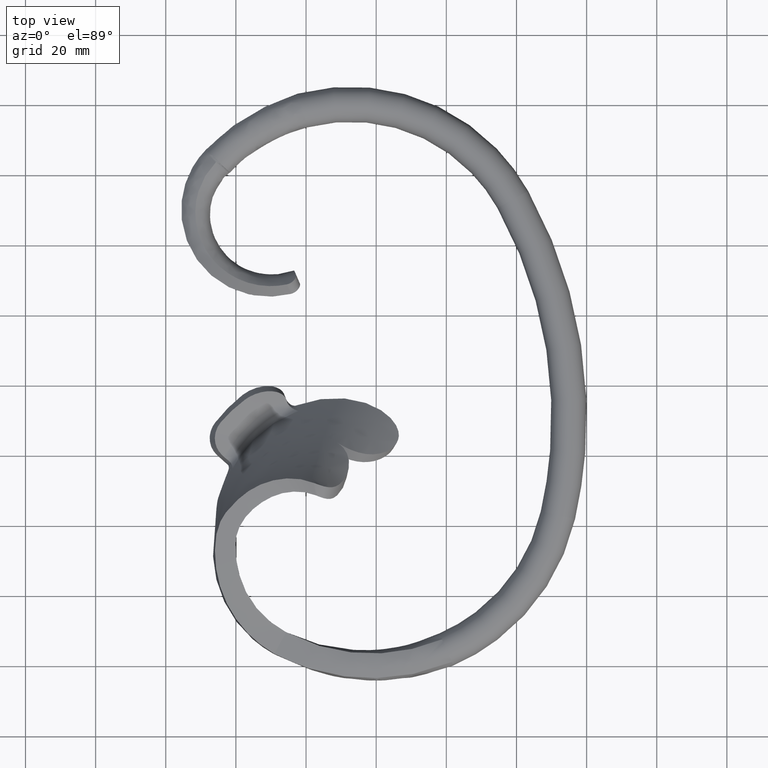
[diagram: clean part render]
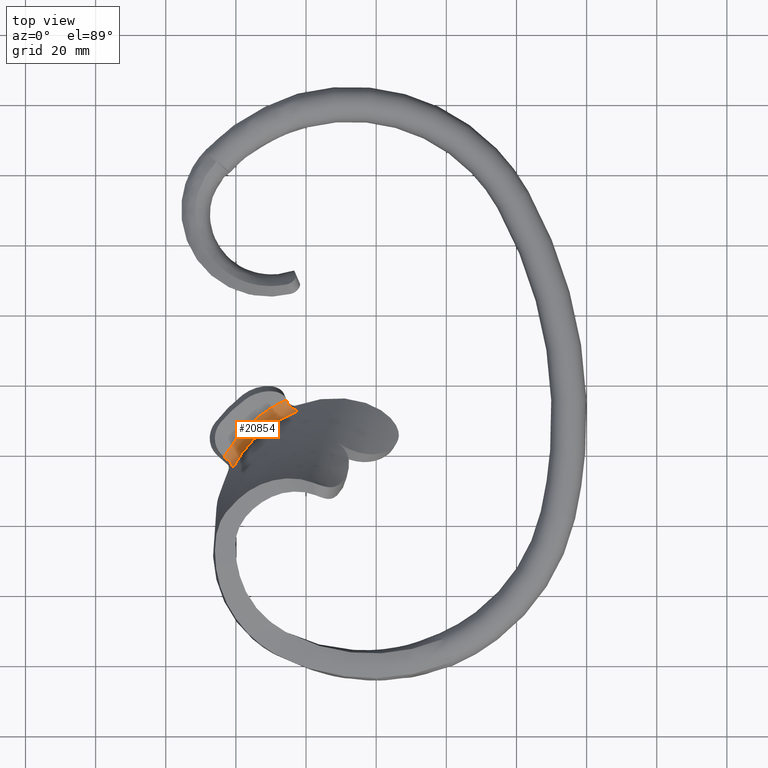
[diagram: same view with one face highlighted and labeled with its STEP entity id]
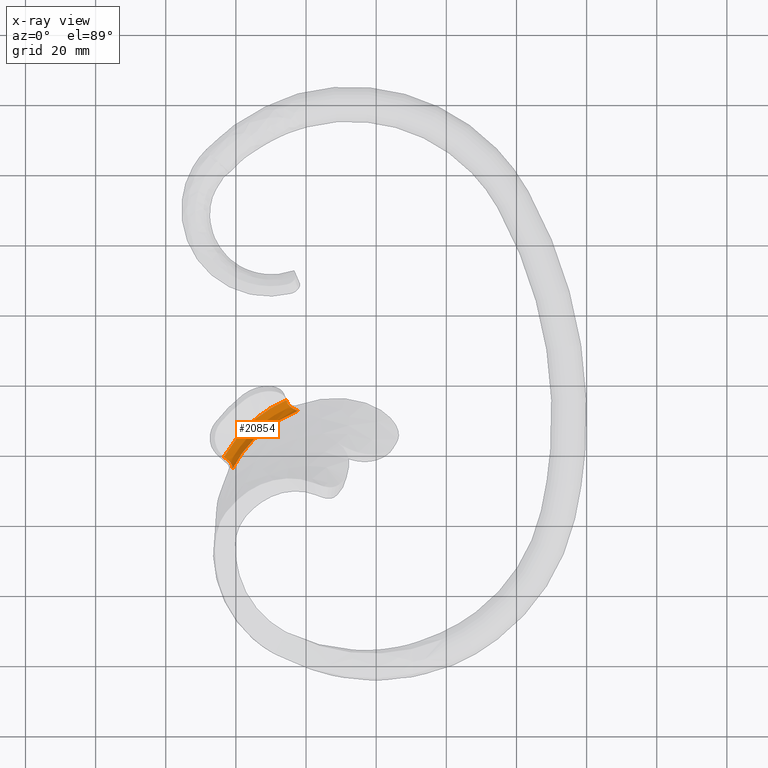
[diagram: x-ray of the same camera — body ghosted, the highlighted face saturated]
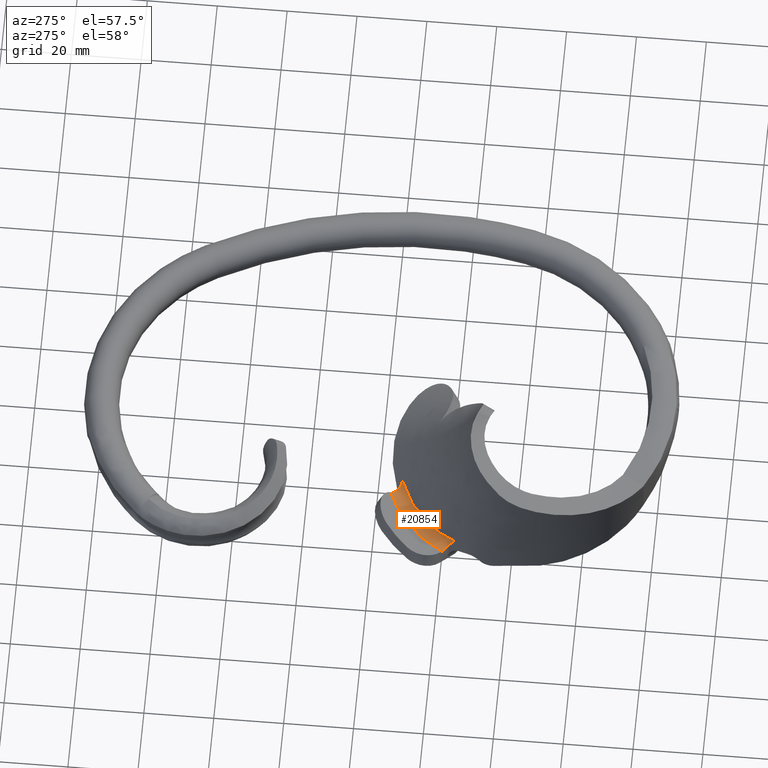
[diagram: same view with one face highlighted and labeled with its STEP entity id]
A machine part, top view. The second image highlights one B-rep face of the part: STEP entity #20854.
The next image is the same camera in x-ray: the body ghosted, the highlighted face saturated — about 0% of this face is hidden behind the body in this view.
A second angle (auxiliary view) of the same face is appended — the face is thin or edge-on in the first view.
In plain terms, the highlighted face is a freeform B-spline surface patch.
Its self-contained STEP definition (entity closure, byte-faithful):
#44 = CARTESIAN_POINT ( 'NONE',  ( -29.76850546036942546, -11.04245866875958981, -13.17953578581088081 ) ) ;
#414 = B_SPLINE_CURVE_WITH_KNOTS ( 'NONE', 3,
 ( #23416, #25579, #21502, #23590, #24035, #1334, #15839, #7750, #23758, #17833, #25836, #3582, #3314, #23946 ),
 .UNSPECIFIED., .F., .F.,
 ( 4, 2, 2, 2, 2, 2, 4 ),
 ( 1.811104479740059440E-17, 0.0004517814389672266122, 0.0009035628779344351182, 0.001807125755868843348, 0.002710688633803251361, 0.003162470072770456019, 0.003614251511737659808 ),
 .UNSPECIFIED. ) ;
#472 = CARTESIAN_POINT ( 'NONE',  ( -40.95938545482690074, -23.66976557625467237, -12.69989829459622399 ) ) ;
#666 = ORIENTED_EDGE ( 'NONE', *, *, #10993, .F. ) ;
#1334 = CARTESIAN_POINT ( 'NONE',  ( -41.40358548108321202, -22.10060004900319797, -14.43897433938566266 ) ) ;
#1424 = CARTESIAN_POINT ( 'NONE',  ( -24.82343604445838281, -3.814388491378711166, -13.42365604626865760 ) ) ;
#1512 = CARTESIAN_POINT ( 'NONE',  ( -23.08433491217182620, -7.556268275641481402, -12.52244880115946835 ) ) ;
#1523 = CARTESIAN_POINT ( 'NONE',  ( -36.57816587474498959, -11.41665345036053836, -14.84372597568098406 ) ) ;
#1692 = CARTESIAN_POINT ( 'NONE',  ( -24.08788445665152267, -7.955938398561930747, -12.64135043411182835 ) ) ;
#1778 = CARTESIAN_POINT ( 'NONE',  ( -32.36629779738443347, -12.97717960331475240, -13.32188062161590913 ) ) ;
#1851 = CARTESIAN_POINT ( 'NONE',  ( -41.16859937603722841, -22.23027845627958143, -15.74697032563350163 ) ) ;
#1932 = CARTESIAN_POINT ( 'NONE',  ( -40.43297420820871224, -22.70985904824243207, -12.81900093171249821 ) ) ;
#1971 = EDGE_CURVE ( 'NONE', #2547, #9428, #4334, .T. ) ;
#2002 = FACE_OUTER_BOUND ( 'NONE', #12253, .T. ) ;
#2025 = CARTESIAN_POINT ( 'NONE',  ( -43.27009315666528977, -20.04080515305191312, -14.88245685376667637 ) ) ;
#2110 = CARTESIAN_POINT ( 'NONE',  ( -33.58315164135750308, -14.05227138686590038, -13.35038135666667003 ) ) ;
#2202 = CARTESIAN_POINT ( 'NONE',  ( -44.36115075249910689, -22.13245049612387660, -14.75766952526318221 ) ) ;
#2441 = CARTESIAN_POINT ( 'NONE',  ( -39.91693056719198296, -21.81358601959886911, -12.93192292353537631 ) ) ;
#2547 = VERTEX_POINT ( 'NONE', #10635 ) ;
#2741 = CARTESIAN_POINT ( 'NONE',  ( -43.40567961550441822, -20.29162093778961307, -14.86631043169677646 ) ) ;
#3314 = CARTESIAN_POINT ( 'NONE',  ( -40.95137574672741465, -23.58556148152964838, -12.82449381640276798 ) ) ;
#3395 = CARTESIAN_POINT ( 'NONE',  ( -23.61806882005847896, -6.009913057351933041, -14.99068133870945552 ) ) ;
#3406 = CARTESIAN_POINT ( 'NONE',  ( -29.23579235363984807, -5.872358788473834856, -14.07531743228589427 ) ) ;
#3479 = CARTESIAN_POINT ( 'NONE',  ( -24.42579873187920825, -3.651969556383702464, -13.36034110727558577 ) ) ;
#3573 = CARTESIAN_POINT ( 'NONE',  ( -23.27309209511182786, -7.630310300353325026, -12.54410795981713633 ) ) ;
#3582 = CARTESIAN_POINT ( 'NONE',  ( -40.94959276036374263, -23.49619023734425483, -12.94932951577066760 ) ) ;
#3667 = CARTESIAN_POINT ( 'NONE',  ( -24.88734974321244664, -3.841177015830578689, -13.43432728033384826 ) ) ;
#3743 = CARTESIAN_POINT ( 'NONE',  ( -23.74229874335965818, -6.062894649191756358, -15.00650151906111418 ) ) ;
#3824 = CARTESIAN_POINT ( 'NONE',  ( -37.76687341098469375, -16.84620413155892393, -16.10149250594393067 ) ) ;
#3918 = CARTESIAN_POINT ( 'NONE',  ( -43.68921266836929362, -20.80937959299932771, -14.83424887422059868 ) ) ;
#4007 = CARTESIAN_POINT ( 'NONE',  ( -40.51563935332089983, -22.85691190776732284, -12.80005610126362114 ) ) ;
#4088 = CARTESIAN_POINT ( 'NONE',  ( -41.21784607917445697, -22.32561736692827026, -15.73694882067989376 ) ) ;
#4170 = CARTESIAN_POINT ( 'NONE',  ( -38.84180857146350974, -20.10553825081292345, -13.11453821720941804 ) ) ;
#4269 = CARTESIAN_POINT ( 'NONE',  ( -41.41658188344730718, -22.72020241177144939, -15.69190476141811885 ) ) ;
#4330 = CARTESIAN_POINT ( 'NONE',  ( -36.87764513332638217, -17.48846780313327542, -13.29766782119081014 ) ) ;
#4334 = B_SPLINE_CURVE_WITH_KNOTS ( 'NONE', 3,
 ( #9645, #24131, #23760, #9376, #9734, #19979, #15746, #23851, #5485, #20068, #13855, #26205, #5578, #17646, #1523, #19712, #7579, #21948, #3406, #17836, #25839 ),
 .UNSPECIFIED., .F., .F.,
 ( 4, 2, 1, 2, 2, 2, 2, 2, 2, 2, 4 ),
 ( -5.999999932499358915E-08, 0.0003816672337653026644, 0.0007633944675299303819, 0.001526848935059185166, 0.003053757870117694735, 0.006107575740234714307, 0.009161393610351733011, 0.01068830254541024323, 0.01221521148046875345, 0.01832284722070275443, 0.02443048296093675020 ),
 .UNSPECIFIED. ) ;
#4456 =( BOUNDED_SURFACE ( )  B_SPLINE_SURFACE ( 3, 2, ( 
 ( #24204, #16089, #11863 ),
 ( #26286, #22201, #14012 ),
 ( #22033, #19882, #7565 ),
 ( #13753, #9981, #11692 ),
 ( #1512, #9900, #3479 ),
 ( #3573, #26099, #11783 ),
 ( #13930, #3395, #16006 ),
 ( #24294, #3743, #1424 ),
 ( #13842, #15829, #3667 ),
 ( #1692, #17823, #18178 ),
 ( #18085, #20224, #24373 ),
 ( #17919, #5565, #7920 ),
 ( #22290, #7654, #18002 ),
 ( #24117, #26192, #7828 ),
 ( #15924, #5736, #20146 ),
 ( #44, #7995, #14355 ),
 ( #12116, #6177, #16438 ),
 ( #20572, #6085, #26441 ),
 ( #1778, #24810, #10157 ),
 ( #2110, #16172, #22380 ),
 ( #22646, #8260, #14439 ),
 ( #12383, #26701, #18604 ),
 ( #10325, #24726, #10066 ),
 ( #24455, #16530, #18517 ),
 ( #18262, #3824, #6269 ),
 ( #5914, #24546, #5999 ),
 ( #4170, #22548, #26530 ),
 ( #20664, #18424, #10416 ),
 ( #8343, #22736, #2025 ),
 ( #20308, #14175, #12203 ),
 ( #14092, #1851, #20487 ),
 ( #16258, #4088, #3918 ),
 ( #18337, #20401, #26620 ),
 ( #8082, #22462, #14267 ),
 ( #1932, #16345, #8173 ),
 ( #4007, #10238, #12292 ),
 ( #24641, #4269, #8799 ),
 ( #24905, #18787, #21025 ),
 ( #8437, #6726, #14797 ),
 ( #16893, #12827, #2202 ) ),
 .UNSPECIFIED., .F., .F., .F. ) 
 B_SPLINE_SURFACE_WITH_KNOTS ( ( 4, 2, 2, 2, 2, 2, 2, 2, 2, 2, 2, 2, 2, 2, 2, 2, 2, 2, 2, 4 ),
 ( 3, 3 ),
 ( 0.05206743305316917370, 0.05291993615942454376, 0.05334618771255222880, 0.05355931348911607132, 0.05377243926567991383, 0.05547744547819065397, 0.05888745790321212731, 0.06059246411572286051, 0.06229747032823360064, 0.06570748275325508092, 0.06741248896576582106, 0.06911749517827656120, 0.07252750760329804147, 0.07593752002831952175, 0.07764252624083026189, 0.07785565201739411134, 0.07796221490567603607, 0.07806877779395794692, 0.07849502934708563195, 0.07934753245334098815 ),
 ( 0.000000000000000000, 1.000000000000000000 ),
 .UNSPECIFIED. ) 
 GEOMETRIC_REPRESENTATION_ITEM ( )  RATIONAL_B_SPLINE_SURFACE ( (
 ( 1.000000000000000000, 0.7111441431668186208, 1.000000000000000000),
 ( 1.000000000000000000, 0.7113756139119327138, 1.000000000000000000),
 ( 1.000000000000000000, 0.7116120831596388641, 1.000000000000000000),
 ( 1.000000000000000000, 0.7119749825811807487, 1.000000000000000000),
 ( 1.000000000000000000, 0.7120973143900162228, 1.000000000000000000),
 ( 1.000000000000000000, 0.7122829380535076194, 1.000000000000000000),
 ( 1.000000000000000000, 0.7123451524535797663, 1.000000000000000000),
 ( 1.000000000000000000, 0.7124702161662124222, 1.000000000000000000),
 ( 1.000000000000000000, 0.7125777696179602660, 1.000000000000000000),
 ( 1.000000000000000000, 0.7123528080028022069, 1.000000000000000000),
 ( 1.000000000000000000, 0.7121497526254354504, 1.000000000000000000),
 ( 1.000000000000000000, 0.7115171381817239071, 1.000000000000000000),
 ( 1.000000000000000000, 0.7110706932374695199, 1.000000000000000000),
 ( 1.000000000000000000, 0.7104004420955978283, 1.000000000000000000),
 ( 1.000000000000000000, 0.7101779582108158628, 1.000000000000000000),
 ( 1.000000000000000000, 0.7097339848433383835, 1.000000000000000000),
 ( 1.000000000000000000, 0.7095117973524093236, 1.000000000000000000),
 ( 1.000000000000000000, 0.7088362058545641942, 1.000000000000000000),
 ( 1.000000000000000000, 0.7083713594687531812, 1.000000000000000000),
 ( 1.000000000000000000, 0.7076972824088877401, 1.000000000000000000),
 ( 1.000000000000000000, 0.7074742883701689022, 1.000000000000000000),
 ( 1.000000000000000000, 0.7070323788107603091, 1.000000000000000000),
 ( 1.000000000000000000, 0.7068125324326063330, 1.000000000000000000),
 ( 1.000000000000000000, 0.7061612449067178332, 1.000000000000000000),
 ( 1.000000000000000000, 0.7057454735467924012, 1.000000000000000000),
 ( 1.000000000000000000, 0.7048078632699387169, 1.000000000000000000),
 ( 1.000000000000000000, 0.7042558685988494771, 1.000000000000000000),
 ( 1.000000000000000000, 0.7034327703482669003, 1.000000000000000000),
 ( 1.000000000000000000, 0.7031603139451971796, 1.000000000000000000),
 ( 1.000000000000000000, 0.7028736918683309298, 1.000000000000000000),
 ( 1.000000000000000000, 0.7028423433545183396, 1.000000000000000000),
 ( 1.000000000000000000, 0.7027960539136044460, 1.000000000000000000),
 ( 1.000000000000000000, 0.7027650307663644291, 1.000000000000000000),
 ( 1.000000000000000000, 0.7028009313548870818, 1.000000000000000000),
 ( 1.000000000000000000, 0.7028187961193999023, 1.000000000000000000),
 ( 1.000000000000000000, 0.7029077020594017844, 1.000000000000000000),
 ( 1.000000000000000000, 0.7029775140581013826, 1.000000000000000000),
 ( 1.000000000000000000, 0.7031830396122209503, 1.000000000000000000),
 ( 1.000000000000000000, 0.7033148975316761975, 1.000000000000000000),
 ( 1.000000000000000000, 0.7034426798579952456, 1.000000000000000000) ) ) 
 REPRESENTATION_ITEM ( '' )  SURFACE ( )  );
#5332 = ORIENTED_EDGE ( 'NONE', *, *, #19008, .T. ) ;
#5485 = CARTESIAN_POINT ( 'NONE',  ( -41.24037282601419463, -16.81919244271806946, -14.99521965594871276 ) ) ;
#5524 = CARTESIAN_POINT ( 'NONE',  ( -25.51186546637336505, -4.257865747691061742, -13.62384176158913363 ) ) ;
#5565 = CARTESIAN_POINT ( 'NONE',  ( -26.46455215359696211, -7.322789046810009417, -15.36851345556520876 ) ) ;
#5578 = CARTESIAN_POINT ( 'NONE',  ( -37.66687085691253145, -12.50509954697501414, -14.91196671822767428 ) ) ;
#5736 = CARTESIAN_POINT ( 'NONE',  ( -29.41581303803803138, -9.088767870530578108, -15.69918298086466990 ) ) ;
#5883 = CARTESIAN_POINT ( 'NONE',  ( -22.71653399191366773, -7.412084421164813364, -12.48021362348812424 ) ) ;
#5914 = CARTESIAN_POINT ( 'NONE',  ( -38.23085213201760979, -19.23316719809762176, -13.18740217243378687 ) ) ;
#5999 = CARTESIAN_POINT ( 'NONE',  ( -41.34700407776836073, -16.96097714558526448, -14.99483813151429068 ) ) ;
#6085 = CARTESIAN_POINT ( 'NONE',  ( -32.19350991524994754, -11.11917037821060283, -15.94534706785984035 ) ) ;
#6177 = CARTESIAN_POINT ( 'NONE',  ( -30.82678208483131144, -10.07601481428552148, -15.83232672212407977 ) ) ;
#6269 = CARTESIAN_POINT ( 'NONE',  ( -39.90125792740165878, -15.02863392163688872, -14.99779185083860256 ) ) ;
#6444 = CARTESIAN_POINT ( 'NONE',  ( -25.47428158193053349, -4.414322068836333379, -13.71380617622522635 ) ) ;
#6608 = CARTESIAN_POINT ( 'NONE',  ( -27.07886094767422946, -9.384533134470837368, -12.96131239880683417 ) ) ;
#6726 = CARTESIAN_POINT ( 'NONE',  ( -41.71367547415369614, -23.32712598098325429, -15.62460963376939027 ) ) ;
#6944 = CARTESIAN_POINT ( 'NONE',  ( -22.21767933813427476, -7.226777998182064344, -12.43076396185534094 ) ) ;
#7028 = ORIENTED_EDGE ( 'NONE', *, *, #18556, .F. ) ;
#7429 = CARTESIAN_POINT ( 'NONE',  ( -25.49498385120665844, -4.328645343937805201, -13.66654149843208721 ) ) ;
#7449 = VERTEX_POINT ( 'NONE', #7967 ) ;
#7565 = CARTESIAN_POINT ( 'NONE',  ( -23.89453797925189349, -3.439870426523729208, -13.27899522671646260 ) ) ;
#7579 = CARTESIAN_POINT ( 'NONE',  ( -34.30386044499079645, -9.336887364029710312, -14.66619888048259845 ) ) ;
#7654 = CARTESIAN_POINT ( 'NONE',  ( -27.46812804008518327, -7.872720435578895781, -15.48955902839464294 ) ) ;
#7750 = CARTESIAN_POINT ( 'NONE',  ( -41.08757178867347193, -22.72923539672733639, -13.86608099521722259 ) ) ;
#7828 = CARTESIAN_POINT ( 'NONE',  ( -30.37174419845431217, -6.605278579449850085, -14.21425807086474080 ) ) ;
#7920 = CARTESIAN_POINT ( 'NONE',  ( -27.72853424589683158, -5.106309575483383156, -13.86086911131313393 ) ) ;
#7967 = CARTESIAN_POINT ( 'NONE',  ( -40.95938545482690074, -23.66976557625467237, -12.69989829459622399 ) ) ;
#7995 = CARTESIAN_POINT ( 'NONE',  ( -30.36248985333687145, -9.739438628822755462, -15.79060995265018441 ) ) ;
#8082 = CARTESIAN_POINT ( 'NONE',  ( -40.41641382008071304, -22.68047066756599506, -12.82280148255661523 ) ) ;
#8173 = CARTESIAN_POINT ( 'NONE',  ( -43.75800132394807918, -20.93958935644841901, -14.82598789112440052 ) ) ;
#8260 = CARTESIAN_POINT ( 'NONE',  ( -34.74093007557150514, -13.43617998773190791, -16.08240049367316971 ) ) ;
#8343 = CARTESIAN_POINT ( 'NONE',  ( -39.98087165592379222, -21.92051102774618343, -12.91934199781865011 ) ) ;
#8437 = CARTESIAN_POINT ( 'NONE',  ( -40.90522705316630692, -23.56702702734279242, -12.71194081366711792 ) ) ;
#8530 = CARTESIAN_POINT ( 'NONE',  ( -25.45279729147317127, -4.501790891478699486, -13.75661388925756867 ) ) ;
#8589 = CARTESIAN_POINT ( 'NONE',  ( -28.91595837574801919, -10.46793238071282062, -13.11999821339689554 ) ) ;
#8673 = CARTESIAN_POINT ( 'NONE',  ( -35.09916247392494881, -15.52335363356865550, -13.35412607684676622 ) ) ;
#8799 = CARTESIAN_POINT ( 'NONE',  ( -43.90767087263415647, -21.22814950363075326, -14.80846718489264191 ) ) ;
#8975 = CARTESIAN_POINT ( 'NONE',  ( -22.93969375558230794, -6.969415529967141865, -13.06223405117900427 ) ) ;
#9054 = CARTESIAN_POINT ( 'NONE',  ( -24.73152659079823934, -5.755007668289891853, -13.98137755125410031 ) ) ;
#9325 = CARTESIAN_POINT ( 'NONE',  ( -25.31061038854252487, -4.947078206488805918, -13.92786464670841262 ) ) ;
#9376 = CARTESIAN_POINT ( 'NONE',  ( -43.15266408574198920, -19.84392920881771616, -14.89126008877860485 ) ) ;
#9428 = VERTEX_POINT ( 'NONE', #10934 ) ;
#9645 = CARTESIAN_POINT ( 'NONE',  ( -43.40567961550441822, -20.29162093778961307, -14.86631043169677646 ) ) ;
#9734 = CARTESIAN_POINT ( 'NONE',  ( -42.96027348237632282, -19.51019526541551485, -14.90857695917042314 ) ) ;
#9900 = CARTESIAN_POINT ( 'NONE',  ( -23.36916622111356645, -5.904658766234680556, -14.95959093952940577 ) ) ;
#9981 = CARTESIAN_POINT ( 'NONE',  ( -23.24457892588768360, -5.852546832308125779, -14.94441896123873903 ) ) ;
#10066 = CARTESIAN_POINT ( 'NONE',  ( -37.90467916628390554, -12.75302243086549403, -14.92499698831363197 ) ) ;
#10157 = CARTESIAN_POINT ( 'NONE',  ( -34.81418842227986943, -9.806830400958515881, -14.70545925644426610 ) ) ;
#10238 = CARTESIAN_POINT ( 'NONE',  ( -41.35627014958572545, -22.59922462220605155, -15.70568543253289562 ) ) ;
#10325 = CARTESIAN_POINT ( 'NONE',  ( -35.13453266016455956, -15.55977529316350427, -13.35368956776895466 ) ) ;
#10416 = CARTESIAN_POINT ( 'NONE',  ( -42.96675636797601783, -19.51483631531017693, -14.90953816947611088 ) ) ;
#10561 = CARTESIAN_POINT ( 'NONE',  ( -36.18985093837971334, -16.68436696254575224, -13.33088930793454985 ) ) ;
#10635 = CARTESIAN_POINT ( 'NONE',  ( -43.40567961550441822, -20.29162093778961307, -14.86631043169677646 ) ) ;
#10753 = CARTESIAN_POINT ( 'NONE',  ( -39.64068788816763345, -21.36004113807311811, -12.98343592339687902 ) ) ;
#10934 = CARTESIAN_POINT ( 'NONE',  ( -25.55396946023624594, -4.116957629322386403, -13.53715307569771653 ) ) ;
#10965 = B_SPLINE_CURVE_WITH_KNOTS ( 'NONE', 3,
 ( #25174, #6444, #8530, #14983 ),
 .UNSPECIFIED., .F., .F.,
 ( 4, 4 ),
 ( 0.0002546814975663375612, 0.0005536646435619274262 ),
 .UNSPECIFIED. ) ;
#10993 = EDGE_CURVE ( 'NONE', #20573, #12563, #10965, .T. ) ;
#11282 = EDGE_CURVE ( 'NONE', #15493, #12563, #25457, .T. ) ;
#11692 = CARTESIAN_POINT ( 'NONE',  ( -24.29305932373507204, -3.598559319623893415, -13.33973544938138822 ) ) ;
#11783 = CARTESIAN_POINT ( 'NONE',  ( -24.62475118344531921, -3.732875819033695031, -13.39178615183572063 ) ) ;
#11863 = CARTESIAN_POINT ( 'NONE',  ( -23.36199049639708036, -3.234347881235916322, -13.20232494959036273 ) ) ;
#12116 = CARTESIAN_POINT ( 'NONE',  ( -30.21319779287230745, -11.34938217209023925, -13.20904804706611024 ) ) ;
#12203 = CARTESIAN_POINT ( 'NONE',  ( -43.59868453920368125, -20.64193949463540534, -14.84502506813515765 ) ) ;
#12253 = EDGE_LOOP ( 'NONE', ( #15532, #5332, #7028, #26138, #666, #25510, #17154 ) ) ;
#12292 = CARTESIAN_POINT ( 'NONE',  ( -43.84139430214463573, -21.09964697280001644, -14.81616209931972605 ) ) ;
#12383 = CARTESIAN_POINT ( 'NONE',  ( -34.75725749186969438, -15.17531025737925177, -13.35729981391095400 ) ) ;
#12563 = VERTEX_POINT ( 'NONE', #19163 ) ;
#12797 = CARTESIAN_POINT ( 'NONE',  ( -24.20010518494717999, -8.003542309823149736, -12.65437433836695647 ) ) ;
#12827 = CARTESIAN_POINT ( 'NONE',  ( -41.82940146159226202, -23.57150842706293403, -15.59871853463510227 ) ) ;
#13169 = CARTESIAN_POINT ( 'NONE',  ( -24.30049052552361033, -6.147302894628555059, -13.85997370733969625 ) ) ;
#13353 = CARTESIAN_POINT ( 'NONE',  ( -22.79171767236065449, -7.031747621433678930, -12.94502654882185233 ) ) ;
#13629 = CARTESIAN_POINT ( 'NONE',  ( -25.55396946023624594, -4.116957629322386403, -13.53715307569771653 ) ) ;
#13753 = CARTESIAN_POINT ( 'NONE',  ( -22.95833899519920607, -7.507363900002156143, -12.50836646087982729 ) ) ;
#13842 = CARTESIAN_POINT ( 'NONE',  ( -23.52423586983173820, -7.729843091888337625, -12.57370718086497163 ) ) ;
#13855 = CARTESIAN_POINT ( 'NONE',  ( -39.37848145866241367, -14.39863777580156956, -14.98524765189787544 ) ) ;
#13930 = CARTESIAN_POINT ( 'NONE',  ( -23.33595693625407819, -7.655099466930759711, -12.55141528653479988 ) ) ;
#14012 = CARTESIAN_POINT ( 'NONE',  ( -23.62845297883172080, -3.336133392277563559, -13.23993742094664761 ) ) ;
#14092 = CARTESIAN_POINT ( 'NONE',  ( -40.31665483673368300, -22.50446695119564566, -12.84556973923223389 ) ) ;
#14175 = CARTESIAN_POINT ( 'NONE',  ( -41.13559705517954512, -22.16682618865693399, -15.75354818314894345 ) ) ;
#14267 = CARTESIAN_POINT ( 'NONE',  ( -43.74129387072357389, -20.90760339652219812, -14.82796357514288133 ) ) ;
#14355 = CARTESIAN_POINT ( 'NONE',  ( -31.90466850460602899, -7.604704600842277173, -14.40023409971017010 ) ) ;
#14439 = CARTESIAN_POINT ( 'NONE',  ( -36.61874870286719386, -11.45364863281999135, -14.84692421723199907 ) ) ;
#14535 = B_SPLINE_CURVE_WITH_KNOTS ( 'NONE', 3,
 ( #25529, #19224, #15325, #23540, #15064, #2741 ),
 .UNSPECIFIED., .F., .F.,
 ( 4, 2, 4 ),
 ( 0.003145753455179702788, 0.003950073323211965130, 0.004754393191244227906 ),
 .UNSPECIFIED. ) ;
#14680 = CARTESIAN_POINT ( 'NONE',  ( -38.78377210362832272, -20.02077768951767567, -13.12205394043971474 ) ) ;
#14766 = CARTESIAN_POINT ( 'NONE',  ( -33.56518265287648006, -14.03604570380676542, -13.35004292562973660 ) ) ;
#14797 = CARTESIAN_POINT ( 'NONE',  ( -44.23409062407620951, -21.87288906754015372, -14.77149358738712870 ) ) ;
#14860 = CARTESIAN_POINT ( 'NONE',  ( -31.53290320005250180, -12.30890119743842881, -13.28631824900139158 ) ) ;
#14983 = CARTESIAN_POINT ( 'NONE',  ( -25.43053703061923088, -4.591044012400402607, -13.79498551023266018 ) ) ;
#15064 = CARTESIAN_POINT ( 'NONE',  ( -43.21642590687873309, -20.47057306628087758, -14.94422261546310438 ) ) ;
#15325 = CARTESIAN_POINT ( 'NONE',  ( -42.59778738644331497, -20.99236544868240628, -15.00574304462421082 ) ) ;
#15416 = CARTESIAN_POINT ( 'NONE',  ( -23.39133542934760257, -6.756386637592350475, -13.39303251568627218 ) ) ;
#15493 = VERTEX_POINT ( 'NONE', #6944 ) ;
#15532 = ORIENTED_EDGE ( 'NONE', *, *, #17693, .F. ) ;
#15746 = CARTESIAN_POINT ( 'NONE',  ( -42.36350192764925993, -18.52413597517336896, -14.95051730554244251 ) ) ;
#15829 = CARTESIAN_POINT ( 'NONE',  ( -23.80226526122027053, -6.088880616378074428, -15.01391751422854171 ) ) ;
#15839 = CARTESIAN_POINT ( 'NONE',  ( -41.27872586312427217, -22.31066570096581358, -14.26329766286241707 ) ) ;
#15924 = CARTESIAN_POINT ( 'NONE',  ( -28.86319319425682295, -10.44969446572445015, -13.11296566754117165 ) ) ;
#16006 = CARTESIAN_POINT ( 'NONE',  ( -24.69102699335235229, -3.759970108746997219, -13.40235482727769956 ) ) ;
#16089 = CARTESIAN_POINT ( 'NONE',  ( -22.37024266521255100, -5.496135895364837154, -14.84456410041211427 ) ) ;
#16172 = CARTESIAN_POINT ( 'NONE',  ( -34.32898117479059863, -13.03287085945537171, -16.06624954417828732 ) ) ;
#16258 = CARTESIAN_POINT ( 'NONE',  ( -40.36662042085950475, -22.59239683059811910, -12.83423638681525958 ) ) ;
#16345 = CARTESIAN_POINT ( 'NONE',  ( -41.28039726424191258, -22.44854654347050626, -15.72311923857316351 ) ) ;
#16438 = CARTESIAN_POINT ( 'NONE',  ( -32.40317446859355499, -7.953902136733765893, -14.45704130450103975 ) ) ;
#16530 = CARTESIAN_POINT ( 'NONE',  ( -37.05963303522639052, -15.96007382876227965, -16.11729382669216903 ) ) ;
#16590 = CARTESIAN_POINT ( 'NONE',  ( -24.68896233804007068, -8.216193103286686394, -12.71023444056963925 ) ) ;
#16678 = CARTESIAN_POINT ( 'NONE',  ( -32.36386407372781804, -12.97574657539581011, -13.32165474002195538 ) ) ;
#16763 = CARTESIAN_POINT ( 'NONE',  ( -40.70859966217373227, -23.20002958833733331, -12.75593539781036512 ) ) ;
#16893 = CARTESIAN_POINT ( 'NONE',  ( -41.03145472007969374, -23.80527114887601314, -12.68381860078292966 ) ) ;
#17154 = ORIENTED_EDGE ( 'NONE', *, *, #1971, .F. ) ;
#17418 = CARTESIAN_POINT ( 'NONE',  ( -22.35709701595788346, -7.187841086308760730, -12.56669433595608076 ) ) ;
#17601 = CARTESIAN_POINT ( 'NONE',  ( -25.53147266484211286, -4.187250765650879281, -13.58069775242169541 ) ) ;
#17646 = CARTESIAN_POINT ( 'NONE',  ( -37.30957926844421735, -12.13795198209104953, -14.89139013702862258 ) ) ;
#17693 = EDGE_CURVE ( 'NONE', #23951, #2547, #14535, .T. ) ;
#17823 = CARTESIAN_POINT ( 'NONE',  ( -24.39751213997325507, -6.339873074510080642, -15.09690825745945553 ) ) ;
#17833 = CARTESIAN_POINT ( 'NONE',  ( -40.97064858632683126, -23.21940113990366328, -13.30847429567289097 ) ) ;
#17836 = CARTESIAN_POINT ( 'NONE',  ( -27.43256992930465898, -4.916317482186464360, -13.82406452950157494 ) ) ;
#17840 = EDGE_CURVE ( 'NONE', #9428, #20573, #18698, .T. ) ;
#17919 = CARTESIAN_POINT ( 'NONE',  ( -26.04980626590713655, -8.844704166619910879, -12.85953934995340120 ) ) ;
#18002 = CARTESIAN_POINT ( 'NONE',  ( -28.80194619551310353, -5.672875854681198149, -14.01044324340325709 ) ) ;
#18085 = CARTESIAN_POINT ( 'NONE',  ( -24.58279400660726921, -8.169086195142911677, -12.69825448533846846 ) ) ;
#18178 = CARTESIAN_POINT ( 'NONE',  ( -25.52172275508282695, -4.097640933952140685, -13.53298712356435907 ) ) ;
#18233 = CARTESIAN_POINT ( 'NONE',  ( -22.21767933813427476, -7.226777998182064344, -12.43076396185534094 ) ) ;
#18262 = CARTESIAN_POINT ( 'NONE',  ( -36.92796734772200296, -17.54891125248920147, -13.29479189216014134 ) ) ;
#18337 = CARTESIAN_POINT ( 'NONE',  ( -40.38323844399389628, -22.62173813491444108, -12.83042609003529044 ) ) ;
#18424 = CARTESIAN_POINT ( 'NONE',  ( -40.56142827222704739, -21.09823561826116034, -15.85697939186259475 ) ) ;
#18517 = CARTESIAN_POINT ( 'NONE',  ( -39.13104386498620357, -14.09710340750755364, -14.97984851402534900 ) ) ;
#18556 = EDGE_CURVE ( 'NONE', #15493, #7449, #22827, .T. ) ;
#18604 = CARTESIAN_POINT ( 'NONE',  ( -37.48400833138628485, -12.31385203533856476, -14.90204700292133033 ) ) ;
#18698 = B_SPLINE_CURVE_WITH_KNOTS ( 'NONE', 3,
 ( #13629, #17601, #5524, #7429 ),
 .UNSPECIFIED., .F., .F.,
 ( 4, 4 ),
 ( 0.000000000000000000, 1.000000000000000000 ),
 .UNSPECIFIED. ) ;
#18732 = CARTESIAN_POINT ( 'NONE',  ( -25.49498385120665844, -4.328645343937805201, -13.66654149843208721 ) ) ;
#18754 = CARTESIAN_POINT ( 'NONE',  ( -34.72574294946321061, -15.14389046799913707, -13.35742914012929461 ) ) ;
#18787 = CARTESIAN_POINT ( 'NONE',  ( -41.59600106460400326, -23.08376053076483814, -15.65110533387713687 ) ) ;
#19008 = EDGE_CURVE ( 'NONE', #23951, #7449, #414, .T. ) ;
#19163 = CARTESIAN_POINT ( 'NONE',  ( -25.43053703061923088, -4.591044012400402607, -13.79498551023266018 ) ) ;
#19223 = CARTESIAN_POINT ( 'NONE',  ( -25.11270797109630948, -5.291281819484622950, -13.99381403057048523 ) ) ;
#19224 = CARTESIAN_POINT ( 'NONE',  ( -42.38650833738775958, -21.15560972727008604, -14.97942450341163045 ) ) ;
#19308 = CARTESIAN_POINT ( 'NONE',  ( -24.99433609941069179, -5.451911600596752727, -14.00299125372514197 ) ) ;
#19712 = CARTESIAN_POINT ( 'NONE',  ( -36.20385311020005048, -11.06239762072892674, -14.81661696997028166 ) ) ;
#19882 = CARTESIAN_POINT ( 'NONE',  ( -22.87039449250660894, -5.697519518915799885, -14.89989487492655407 ) ) ;
#19979 = CARTESIAN_POINT ( 'NONE',  ( -42.76336653168920776, -19.17995069079904269, -14.92355703118762200 ) ) ;
#20068 = CARTESIAN_POINT ( 'NONE',  ( -40.64186038914222365, -15.99525971292373860, -15.00086670794279975 ) ) ;
#20146 = CARTESIAN_POINT ( 'NONE',  ( -30.88907897091540988, -6.930429742581177166, -14.27886363628232047 ) ) ;
#20224 = CARTESIAN_POINT ( 'NONE',  ( -24.91913268986894892, -6.575829110827823065, -15.16721343588965354 ) ) ;
#20308 = CARTESIAN_POINT ( 'NONE',  ( -40.28320379651247407, -22.44596487286398556, -12.85303157581844857 ) ) ;
#20401 = CARTESIAN_POINT ( 'NONE',  ( -41.23474108298254492, -22.35825178642147293, -15.73363456010411454 ) ) ;
#20487 = CARTESIAN_POINT ( 'NONE',  ( -43.63500742038245050, -20.70884706907931516, -14.84077131370373870 ) ) ;
#20572 = CARTESIAN_POINT ( 'NONE',  ( -31.52377600429651139, -12.30121762692090392, -13.28600614775246136 ) ) ;
#20573 = VERTEX_POINT ( 'NONE', #18732 ) ;
#20664 = CARTESIAN_POINT ( 'NONE',  ( -39.70307697079379494, -21.46101884738754606, -12.97225046694026140 ) ) ;
#20854 = ADVANCED_FACE ( 'NONE', ( #2002 ), #4456, .F. ) ;
#20898 = CARTESIAN_POINT ( 'NONE',  ( -33.95887932907030660, -14.40030825017100291, -13.35539739391420433 ) ) ;
#20992 = CARTESIAN_POINT ( 'NONE',  ( -26.13708286773663403, -8.889092675833520474, -12.86841288777790737 ) ) ;
#21025 = CARTESIAN_POINT ( 'NONE',  ( -44.10482990879243204, -21.61436925981200829, -14.78588484650796175 ) ) ;
#21282 = CARTESIAN_POINT ( 'NONE',  ( -24.14861647826847246, -6.265034281828408602, -13.79853990448291157 ) ) ;
#21375 = CARTESIAN_POINT ( 'NONE',  ( -24.59103757038091231, -5.892862443252470328, -13.95094513760866484 ) ) ;
#21502 = CARTESIAN_POINT ( 'NONE',  ( -41.94334723267141385, -21.49014337420715037, -14.83752689548173187 ) ) ;
#21543 = CARTESIAN_POINT ( 'NONE',  ( -25.38545820217879267, -4.771788800262949160, -13.87269114586229612 ) ) ;
#21633 = CARTESIAN_POINT ( 'NONE',  ( -25.43053703061923088, -4.591044012400402607, -13.79498551023266018 ) ) ;
#21948 = CARTESIAN_POINT ( 'NONE',  ( -32.68315406052850847, -8.090920581110424337, -14.49788312082504760 ) ) ;
#22033 = CARTESIAN_POINT ( 'NONE',  ( -22.57988687137312667, -7.361987554795193844, -12.46719687810998956 ) ) ;
#22201 = CARTESIAN_POINT ( 'NONE',  ( -22.62050718851601516, -5.595969218770074249, -14.87155172019121885 ) ) ;
#22290 = CARTESIAN_POINT ( 'NONE',  ( -27.00458712326735622, -9.343513887687890929, -12.95436131317761941 ) ) ;
#22380 = CARTESIAN_POINT ( 'NONE',  ( -36.17374506660032552, -11.03233927288965077, -14.81471148173540975 ) ) ;
#22462 = CARTESIAN_POINT ( 'NONE',  ( -41.26519570199210563, -22.41843245616788138, -15.72661704325613385 ) ) ;
#22548 = CARTESIAN_POINT ( 'NONE',  ( -39.70288696283934371, -19.62717368189308687, -15.97489712033326015 ) ) ;
#22646 = CARTESIAN_POINT ( 'NONE',  ( -33.98174259627737115, -14.42167376581787863, -13.35565638281963530 ) ) ;
#22736 = CARTESIAN_POINT ( 'NONE',  ( -40.83712436628535158, -21.59691647489960076, -15.81179778191773266 ) ) ;
#22827 = B_SPLINE_CURVE_WITH_KNOTS ( 'NONE', 3,
 ( #18233, #5883, #22885, #12797, #16590, #20992, #6608, #8589, #23076, #14860, #16678, #14766, #20898, #18754, #8673, #10561, #4330, #24969, #14680, #10753, #2441, #24871, #16763, #472 ),
 .UNSPECIFIED., .F., .F.,
 ( 4, 2, 2, 2, 2, 2, 2, 2, 2, 2, 2, 4 ),
 ( -0.002533513891014449113, -0.0009312352896652623547, 0.0006710433116839257042, 0.003875600514382299654, 0.007080157717080672736, 0.01028471491977904495, 0.01188699352112823973, 0.01348927212247743625, 0.01669382932517582407, 0.01989838652787421364, 0.02150066512922339801, 0.02310294373057258238 ),
 .UNSPECIFIED. ) ;
#22885 = CARTESIAN_POINT ( 'NONE',  ( -23.21366235724088511, -7.603235602001710447, -12.53678284265033405 ) ) ;
#23076 = CARTESIAN_POINT ( 'NONE',  ( -29.81030401540240504, -11.05574325339910224, -13.18560815869556890 ) ) ;
#23416 = CARTESIAN_POINT ( 'NONE',  ( -42.17369683663076074, -21.30948237212953700, -14.91813150096836083 ) ) ;
#23540 = CARTESIAN_POINT ( 'NONE',  ( -43.01685494160947343, -20.64648111590135571, -14.98798384486422108 ) ) ;
#23557 = CARTESIAN_POINT ( 'NONE',  ( -42.17369683663076074, -21.30948237212953700, -14.91813150096836083 ) ) ;
#23590 = CARTESIAN_POINT ( 'NONE',  ( -41.74250081280227676, -21.68527565186672135, -14.72644983481981740 ) ) ;
#23634 = CARTESIAN_POINT ( 'NONE',  ( -22.50081610755623984, -7.140857327231939777, -12.69764660379918020 ) ) ;
#23758 = CARTESIAN_POINT ( 'NONE',  ( -41.02483832746248993, -22.93113971982609200, -13.65053566551309849 ) ) ;
#23760 = CARTESIAN_POINT ( 'NONE',  ( -43.27992226048123570, -20.06719286814414716, -14.87918553572271563 ) ) ;
#23851 = CARTESIAN_POINT ( 'NONE',  ( -42.08886180451868597, -18.09315573751132078, -14.96449476252195510 ) ) ;
#23946 = CARTESIAN_POINT ( 'NONE',  ( -40.95938545482690074, -23.66976557625467237, -12.69989829459622399 ) ) ;
#23951 = VERTEX_POINT ( 'NONE', #23557 ) ;
#24035 = CARTESIAN_POINT ( 'NONE',  ( -41.65062040741287319, -21.78794064117249007, -14.66057789501128994 ) ) ;
#24117 = CARTESIAN_POINT ( 'NONE',  ( -28.40231628881054959, -10.16376113752534138, -13.07587278505159567 ) ) ;
#24131 = CARTESIAN_POINT ( 'NONE',  ( -43.34382772504433490, -20.18060739024441119, -14.87280174178523318 ) ) ;
#24204 = CARTESIAN_POINT ( 'NONE',  ( -22.07344990498862103, -7.173410079312610321, -12.41663008579202909 ) ) ;
#24294 = CARTESIAN_POINT ( 'NONE',  ( -23.46152213520301544, -7.704875149222520037, -12.56619770303763239 ) ) ;
#24373 = CARTESIAN_POINT ( 'NONE',  ( -26.07838143174788925, -4.339430215649588085, -13.61732853453397318 ) ) ;
#24455 = CARTESIAN_POINT ( 'NONE',  ( -36.23534820777754817, -16.73546133077516984, -13.32923296856448125 ) ) ;
#24546 = CARTESIAN_POINT ( 'NONE',  ( -39.08803893124697737, -18.67865398064541083, -16.03014335556816405 ) ) ;
#24641 = CARTESIAN_POINT ( 'NONE',  ( -40.58135745364304370, -22.97495280374105420, -12.78508023984753095 ) ) ;
#24726 = CARTESIAN_POINT ( 'NONE',  ( -35.92912041574123805, -14.67794745956254587, -16.11184022533756277 ) ) ;
#24810 = CARTESIAN_POINT ( 'NONE',  ( -33.06924908622175963, -11.85874450900121779, -16.00445895770139160 ) ) ;
#24871 = CARTESIAN_POINT ( 'NONE',  ( -40.45110118004135558, -22.73448764004082179, -12.81733359809759953 ) ) ;
#24905 = CARTESIAN_POINT ( 'NONE',  ( -40.77692195022144972, -23.32967102748692056, -12.74073647880662286 ) ) ;
#24969 = CARTESIAN_POINT ( 'NONE',  ( -38.17482538677160164, -19.15649554983104963, -13.19319164861888716 ) ) ;
#25174 = CARTESIAN_POINT ( 'NONE',  ( -25.49498385120665844, -4.328645343937805201, -13.66654149843208721 ) ) ;
#25457 = B_SPLINE_CURVE_WITH_KNOTS ( 'NONE', 3,
 ( #25701, #17418, #23634, #13353, #8975, #15416, #25528, #21282, #13169, #21375, #9054, #19308, #19223, #9325, #21543, #21633 ),
 .UNSPECIFIED., .F., .F.,
 ( 4, 2, 2, 2, 2, 2, 2, 4 ),
 ( -1.097233986971720954E-05, 0.0005847403635429856885, 0.001180453066955688534, 0.002371878473781092057, 0.002967591177193793384, 0.003563303880606494278, 0.004159016584019195606, 0.004754729287431896934 ),
 .UNSPECIFIED. ) ;
#25510 = ORIENTED_EDGE ( 'NONE', *, *, #17840, .F. ) ;
#25528 = CARTESIAN_POINT ( 'NONE',  ( -23.69476976913642119, -6.584412754331111728, -13.58104133628324384 ) ) ;
#25529 = CARTESIAN_POINT ( 'NONE',  ( -42.17369683663076074, -21.30948237212953700, -14.91813150096836083 ) ) ;
#25579 = CARTESIAN_POINT ( 'NONE',  ( -42.05286559233327637, -21.39684899975810239, -14.88333023446914716 ) ) ;
#25701 = CARTESIAN_POINT ( 'NONE',  ( -22.21767933813427476, -7.226777998182064344, -12.43076396185534094 ) ) ;
#25836 = CARTESIAN_POINT ( 'NONE',  ( -40.95929459411163265, -23.31324556592306152, -13.19106508778760478 ) ) ;
#25839 = CARTESIAN_POINT ( 'NONE',  ( -25.55396946023624594, -4.116957629322386403, -13.53715307569771653 ) ) ;
#26099 = CARTESIAN_POINT ( 'NONE',  ( -23.55588108708740336, -5.983520072739517914, -14.98284844745781896 ) ) ;
#26138 = ORIENTED_EDGE ( 'NONE', *, *, #11282, .T. ) ;
#26192 = CARTESIAN_POINT ( 'NONE',  ( -28.93320569260848885, -8.774584139245838799, -15.64943524409584086 ) ) ;
#26205 = CARTESIAN_POINT ( 'NONE',  ( -38.71378335540234872, -13.62581922703150639, -14.96381513862716695 ) ) ;
#26286 = CARTESIAN_POINT ( 'NONE',  ( -22.32696635413612185, -7.266852210797235756, -12.44118709100305864 ) ) ;
#26441 = CARTESIAN_POINT ( 'NONE',  ( -33.87141362236668130, -9.037120397821469808, -14.61559129399461732 ) ) ;
#26530 = CARTESIAN_POINT ( 'NONE',  ( -42.02251524029087193, -17.96240323671362660, -14.97408820277109776 ) ) ;
#26620 = CARTESIAN_POINT ( 'NONE',  ( -43.70782143973669776, -20.84368247230645466, -14.83193633925075261 ) ) ;
#26701 = CARTESIAN_POINT ( 'NONE',  ( -35.54081563867858762, -14.25857968159189504, -16.10518027159554322 ) ) ;